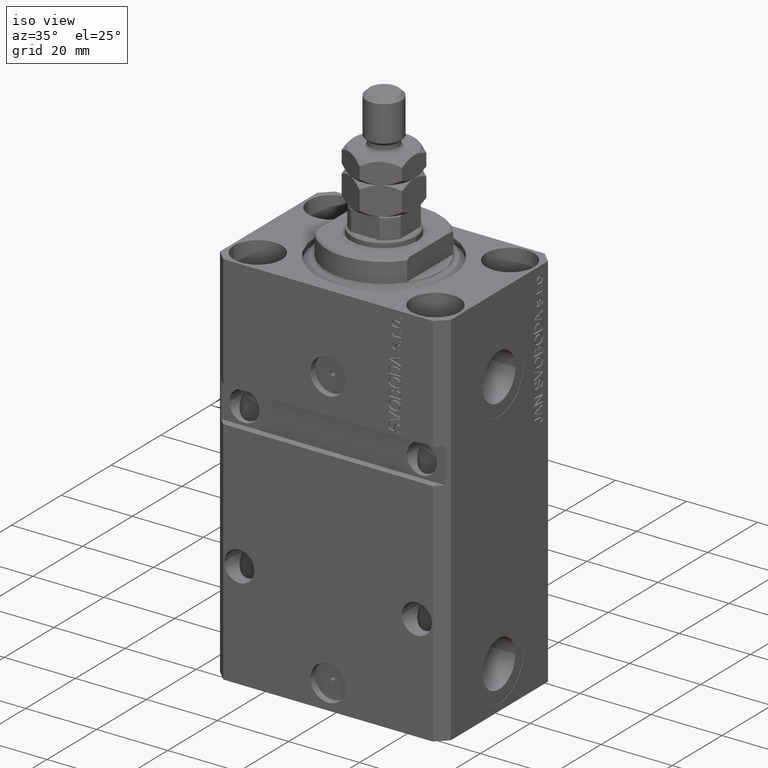
[diagram: clean part render]
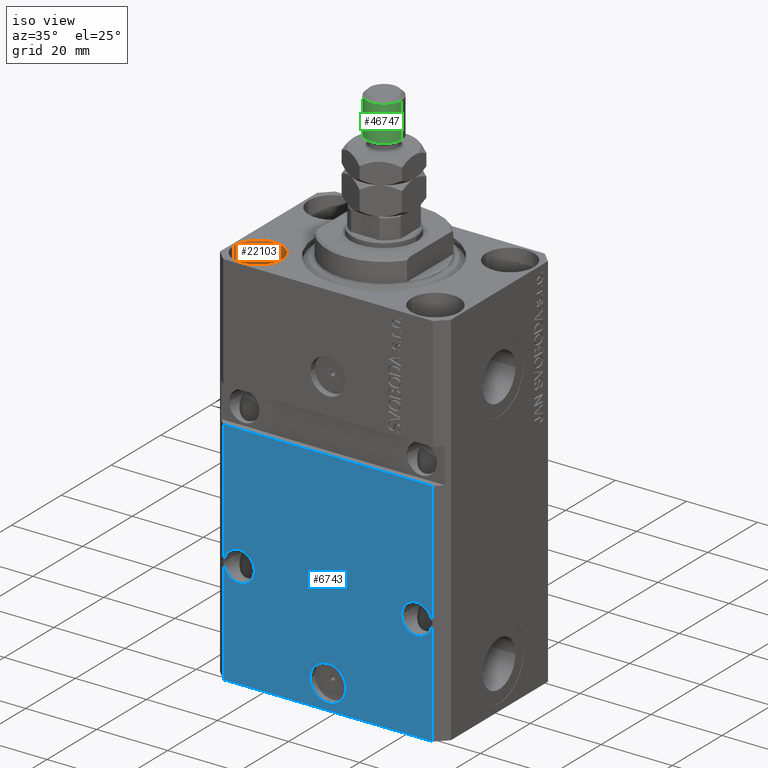
[diagram: same view with three faces highlighted in distinct colors, each labeled with its STEP entity id]
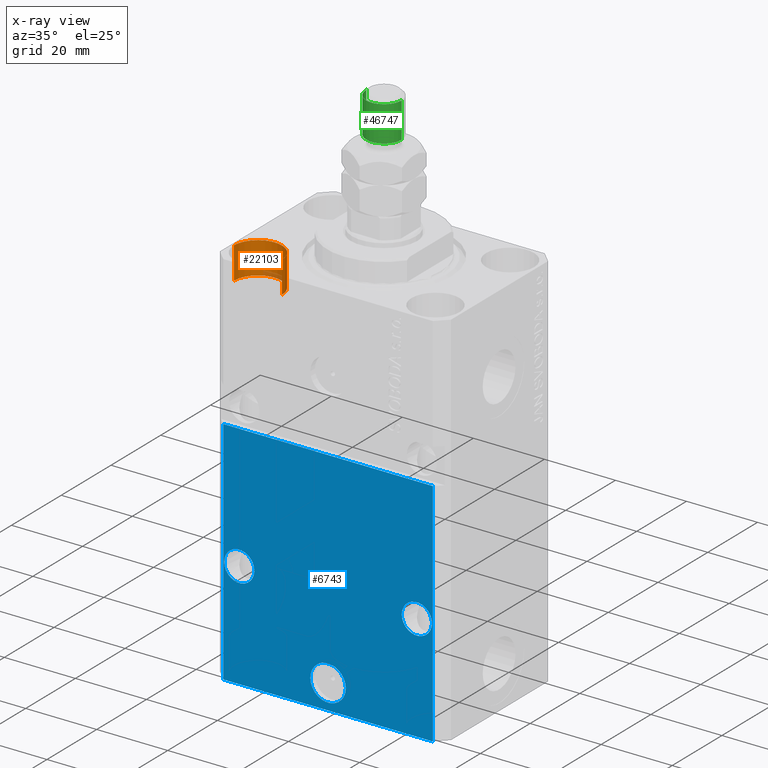
[diagram: x-ray of the same camera — body ghosted, the three highlighted faces saturated]
A machine part, iso view with three faces highlighted in distinct colors.
The next image is the same camera in x-ray (body ghosted, the three faces saturated) — at least one of them is partly hidden behind the body in this view.
Their STEP definitions:

[orange] entity #22103 — the highlighted cylindrical surface (edge-blend (fillet) strip) has radius 6.75 mm, axis along (0, 0, 1).
#2440 = CARTESIAN_POINT ( 'NONE',  ( -18.24999999995846167, -15.00000000000000000, 0.000000000000000000 ) ) ;
#6324 = EDGE_LOOP ( 'NONE', ( #9678, #22619, #23319, #15257 ) ) ;
#8302 = DIRECTION ( 'NONE',  ( 1.000000000000000000, 0.000000000000000000, 0.000000000000000000 ) ) ;
#9015 = CARTESIAN_POINT ( 'NONE',  ( -31.75000000004154899, -15.00000000000000000, -9.000000000000000000 ) ) ;
#9678 = ORIENTED_EDGE ( 'NONE', *, *, #28933, .F. ) ;
#10647 = CARTESIAN_POINT ( 'NONE',  ( -31.75000000004154899, -15.00000000000000000, 0.000000000000000000 ) ) ;
#11940 = FACE_OUTER_BOUND ( 'NONE', #6324, .T. ) ;
#13871 = AXIS2_PLACEMENT_3D ( 'NONE', #38756, #46128, #20679 ) ;
#14105 = LINE ( 'NONE', #14345, #25451 ) ;
#14345 = CARTESIAN_POINT ( 'NONE',  ( -31.75000000004154899, -15.00000000000000000, -9.000000000000000000 ) ) ;
#15048 = DIRECTION ( 'NONE',  ( 1.000000000000000000, 0.000000000000000000, 0.000000000000000000 ) ) ;
#15257 = ORIENTED_EDGE ( 'NONE', *, *, #22565, .T. ) ;
#18155 = DIRECTION ( 'NONE',  ( -0.000000000000000000, -0.000000000000000000, 1.000000000000000000 ) ) ;
#20679 = DIRECTION ( 'NONE',  ( 1.000000000000000000, 0.000000000000000000, 0.000000000000000000 ) ) ;
#21253 = VERTEX_POINT ( 'NONE', #9015 ) ;
#22103 = ADVANCED_FACE ( 'NONE', ( #11940 ), #22407, .F. ) ;
#22407 = CYLINDRICAL_SURFACE ( 'NONE', #39679, 6.750000000041541881 ) ;
#22565 = EDGE_CURVE ( 'NONE', #38188, #34806, #35894, .T. ) ;
#22619 = ORIENTED_EDGE ( 'NONE', *, *, #28071, .F. ) ;
#23319 = ORIENTED_EDGE ( 'NONE', *, *, #42268, .T. ) ;
#25451 = VECTOR ( 'NONE', #18155, 1000.000000000000000 ) ;
#25680 = CARTESIAN_POINT ( 'NONE',  ( -25.00000000000000355, -15.00000000000000000, -9.000000000000000000 ) ) ;
#26698 = CARTESIAN_POINT ( 'NONE',  ( -25.00000000000000355, -15.00000000000000000, -9.000000000000000000 ) ) ;
#28071 = EDGE_CURVE ( 'NONE', #36948, #21253, #45919, .T. ) ;
#28933 = EDGE_CURVE ( 'NONE', #21253, #34806, #14105, .T. ) ;
#29866 = DIRECTION ( 'NONE',  ( -0.000000000000000000, -0.000000000000000000, 1.000000000000000000 ) ) ;
#31496 = AXIS2_PLACEMENT_3D ( 'NONE', #25680, #40881, #8302 ) ;
#32517 = CARTESIAN_POINT ( 'NONE',  ( -18.24999999995846167, -15.00000000000000000, -9.000000000000000000 ) ) ;
#34065 = DIRECTION ( 'NONE',  ( -0.000000000000000000, -0.000000000000000000, 1.000000000000000000 ) ) ;
#34806 = VERTEX_POINT ( 'NONE', #10647 ) ;
#35894 = CIRCLE ( 'NONE', #13871, 6.750000000041541881 ) ;
#36948 = VERTEX_POINT ( 'NONE', #32517 ) ;
#38188 = VERTEX_POINT ( 'NONE', #2440 ) ;
#38529 = VECTOR ( 'NONE', #29866, 1000.000000000000000 ) ;
#38756 = CARTESIAN_POINT ( 'NONE',  ( -25.00000000000000355, -15.00000000000000000, 0.000000000000000000 ) ) ;
#39679 = AXIS2_PLACEMENT_3D ( 'NONE', #26698, #34065, #15048 ) ;
#40100 = CARTESIAN_POINT ( 'NONE',  ( -18.24999999995846167, -15.00000000000000000, -9.000000000000000000 ) ) ;
#40881 = DIRECTION ( 'NONE',  ( 0.000000000000000000, 0.000000000000000000, 1.000000000000000000 ) ) ;
#42268 = EDGE_CURVE ( 'NONE', #36948, #38188, #43905, .T. ) ;
#43905 = LINE ( 'NONE', #40100, #38529 ) ;
#45919 = CIRCLE ( 'NONE', #31496, 6.750000000041541881 ) ;
#46128 = DIRECTION ( 'NONE',  ( 0.000000000000000000, 0.000000000000000000, 1.000000000000000000 ) ) ;

[blue] entity #6743 — the highlighted planar face has unit normal (0, -1, 0).
#6 = DIRECTION ( 'NONE',  ( 1.000000000000000000, 1.176083712526788232E-16, 0.000000000000000000 ) ) ;
#72 = DIRECTION ( 'NONE',  ( 0.000000000000000000, 0.000000000000000000, 1.000000000000000000 ) ) ;
#178 = AXIS2_PLACEMENT_3D ( 'NONE', #19100, #12201, #16247 ) ;
#519 = CIRCLE ( 'NONE', #34739, 4.249999999976592058 ) ;
#940 = ORIENTED_EDGE ( 'NONE', *, *, #1911, .F. ) ;
#1911 = EDGE_CURVE ( 'NONE', #35632, #27849, #26534, .T. ) ;
#2856 = VERTEX_POINT ( 'NONE', #36016 ) ;
#2926 = EDGE_CURVE ( 'NONE', #36173, #27288, #7674, .T. ) ;
#3346 = FACE_BOUND ( 'NONE', #9187, .T. ) ;
#3395 = VERTEX_POINT ( 'NONE', #39920 ) ;
#3578 = FACE_BOUND ( 'NONE', #8331, .T. ) ;
#3807 = DIRECTION ( 'NONE',  ( 1.176083712526788232E-16, -1.000000000000000000, 0.000000000000000000 ) ) ;
#4535 = AXIS2_PLACEMENT_3D ( 'NONE', #35035, #35500, #17670 ) ;
#4551 = VECTOR ( 'NONE', #72, 1000.000000000000000 ) ;
#4605 = EDGE_CURVE ( 'NONE', #36173, #3395, #10396, .T. ) ;
#4702 = ORIENTED_EDGE ( 'NONE', *, *, #18719, .F. ) ;
#5260 = AXIS2_PLACEMENT_3D ( 'NONE', #35269, #44866, #38594 ) ;
#5780 = CARTESIAN_POINT ( 'NONE',  ( 29.49999999999650058, -22.49999999999949196, -41.99999999999998579 ) ) ;
#6743 = ADVANCED_FACE ( 'NONE', ( #22115, #3346, #3578, #18097 ), #14285, .T. ) ;
#7285 = DIRECTION ( 'NONE',  ( 1.000000000000000000, 1.176083712526788232E-16, 0.000000000000000000 ) ) ;
#7674 = LINE ( 'NONE', #25762, #4551 ) ;
#8331 = EDGE_LOOP ( 'NONE', ( #940, #37097 ) ) ;
#9187 = EDGE_LOOP ( 'NONE', ( #4702, #24479 ) ) ;
#9382 = DIRECTION ( 'NONE',  ( 1.000000000000000000, 0.000000000000000000, 0.000000000000000000 ) ) ;
#9640 = VERTEX_POINT ( 'NONE', #25306 ) ;
#10048 = CARTESIAN_POINT ( 'NONE',  ( -25.00000000000000000, -22.49999999999949907, -76.99999999999998579 ) ) ;
#10346 = DIRECTION ( 'NONE',  ( 1.000000000000000000, 1.067522139062765303E-16, 1.067522139062765303E-16 ) ) ;
#10396 = LINE ( 'NONE', #24893, #46366 ) ;
#11184 = EDGE_CURVE ( 'NONE', #25308, #2856, #31886, .T. ) ;
#12201 = DIRECTION ( 'NONE',  ( 1.176083712526788232E-16, -1.000000000000000000, 0.000000000000000000 ) ) ;
#13539 = CIRCLE ( 'NONE', #41610, 5.000000000000006217 ) ;
#13845 = CARTESIAN_POINT ( 'NONE',  ( 2.646188353185214061E-15, -22.49999999999949551, -99.99999999999998579 ) ) ;
#14285 = PLANE ( 'NONE',  #47075 ) ;
#14584 = EDGE_LOOP ( 'NONE', ( #34679, #33193, #17086, #31141 ) ) ;
#16097 = EDGE_CURVE ( 'NONE', #30934, #9640, #32799, .T. ) ;
#16247 = DIRECTION ( 'NONE',  ( 1.000000000000000000, 0.000000000000000000, 0.000000000000000000 ) ) ;
#17086 = ORIENTED_EDGE ( 'NONE', *, *, #4605, .T. ) ;
#17670 = DIRECTION ( 'NONE',  ( 1.000000000000000000, 0.000000000000000000, 0.000000000000000000 ) ) ;
#18097 = FACE_OUTER_BOUND ( 'NONE', #14584, .T. ) ;
#18719 = EDGE_CURVE ( 'NONE', #2856, #25308, #41944, .T. ) ;
#19100 = CARTESIAN_POINT ( 'NONE',  ( 25.00000000000000711, -22.49999999999949196, -76.99999999999998579 ) ) ;
#21912 = DIRECTION ( 'NONE',  ( 1.000000000000000000, 0.000000000000000000, 0.000000000000000000 ) ) ;
#22115 = FACE_BOUND ( 'NONE', #36225, .T. ) ;
#24479 = ORIENTED_EDGE ( 'NONE', *, *, #11184, .F. ) ;
#24893 = CARTESIAN_POINT ( 'NONE',  ( -29.49999999999650413, -22.49999999999949907, -107.0000000000000000 ) ) ;
#25114 = EDGE_CURVE ( 'NONE', #3395, #28788, #38139, .T. ) ;
#25306 = CARTESIAN_POINT ( 'NONE',  ( 5.000000000000008882, -22.49999999999949551, -99.99999999999998579 ) ) ;
#25308 = VERTEX_POINT ( 'NONE', #37384 ) ;
#25762 = CARTESIAN_POINT ( 'NONE',  ( -29.49999999999650413, -22.49999999999949907, -107.0000000000000000 ) ) ;
#26465 = CARTESIAN_POINT ( 'NONE',  ( -29.49999999999650413, -22.49999999999949907, -41.99999999999999289 ) ) ;
#26534 = CIRCLE ( 'NONE', #5260, 4.249999999976592058 ) ;
#27288 = VERTEX_POINT ( 'NONE', #26465 ) ;
#27849 = VERTEX_POINT ( 'NONE', #45049 ) ;
#27891 = DIRECTION ( 'NONE',  ( 1.176083712526788232E-16, -1.000000000000000000, 0.000000000000000000 ) ) ;
#28429 = LINE ( 'NONE', #35811, #31583 ) ;
#28788 = VERTEX_POINT ( 'NONE', #5780 ) ;
#30563 = CARTESIAN_POINT ( 'NONE',  ( 2.646188353185214061E-15, -22.49999999999949551, -99.99999999999998579 ) ) ;
#30934 = VERTEX_POINT ( 'NONE', #36944 ) ;
#31141 = ORIENTED_EDGE ( 'NONE', *, *, #25114, .T. ) ;
#31428 = VECTOR ( 'NONE', #42404, 1000.000000000000000 ) ;
#31583 = VECTOR ( 'NONE', #10346, 1000.000000000000000 ) ;
#31861 = CARTESIAN_POINT ( 'NONE',  ( -20.75000000002340883, -22.49999999999949907, -76.99999999999998579 ) ) ;
#31886 = CIRCLE ( 'NONE', #4535, 4.249999999989057642 ) ;
#32604 = CARTESIAN_POINT ( 'NONE',  ( -29.49999999999650413, -22.49999999999949907, -107.0000000000000000 ) ) ;
#32799 = CIRCLE ( 'NONE', #40387, 5.000000000000006217 ) ;
#33193 = ORIENTED_EDGE ( 'NONE', *, *, #2926, .F. ) ;
#33634 = EDGE_CURVE ( 'NONE', #9640, #30934, #13539, .T. ) ;
#34679 = ORIENTED_EDGE ( 'NONE', *, *, #35050, .F. ) ;
#34739 = AXIS2_PLACEMENT_3D ( 'NONE', #10048, #27891, #35506 ) ;
#35035 = CARTESIAN_POINT ( 'NONE',  ( 25.00000000000000711, -22.49999999999949196, -76.99999999999998579 ) ) ;
#35050 = EDGE_CURVE ( 'NONE', #27288, #28788, #28429, .T. ) ;
#35084 = CARTESIAN_POINT ( 'NONE',  ( -29.49999999999650413, -22.49999999999949907, -107.0000000000000000 ) ) ;
#35269 = CARTESIAN_POINT ( 'NONE',  ( -25.00000000000000000, -22.49999999999949907, -76.99999999999998579 ) ) ;
#35500 = DIRECTION ( 'NONE',  ( 1.176083712526788232E-16, -1.000000000000000000, 0.000000000000000000 ) ) ;
#35506 = DIRECTION ( 'NONE',  ( -1.000000000000000000, 0.000000000000000000, 0.000000000000000000 ) ) ;
#35632 = VERTEX_POINT ( 'NONE', #31861 ) ;
#35811 = CARTESIAN_POINT ( 'NONE',  ( -32.49999999999650413, -22.49999999999949907, -41.99999999999999289 ) ) ;
#35978 = DIRECTION ( 'NONE',  ( 1.176083712526788232E-16, -1.000000000000000000, 0.000000000000000000 ) ) ;
#36016 = CARTESIAN_POINT ( 'NONE',  ( 29.24999999998906475, -22.49999999999949196, -76.99999999999998579 ) ) ;
#36173 = VERTEX_POINT ( 'NONE', #35084 ) ;
#36225 = EDGE_LOOP ( 'NONE', ( #45758, #45509 ) ) ;
#36944 = CARTESIAN_POINT ( 'NONE',  ( -5.000000000000003553, -22.49999999999949551, -99.99999999999998579 ) ) ;
#37097 = ORIENTED_EDGE ( 'NONE', *, *, #38206, .F. ) ;
#37384 = CARTESIAN_POINT ( 'NONE',  ( 20.75000000001094946, -22.49999999999949196, -76.99999999999998579 ) ) ;
#38139 = LINE ( 'NONE', #38377, #31428 ) ;
#38206 = EDGE_CURVE ( 'NONE', #27849, #35632, #519, .T. ) ;
#38377 = CARTESIAN_POINT ( 'NONE',  ( 29.49999999999650413, -22.49999999999949196, -107.0000000000000000 ) ) ;
#38594 = DIRECTION ( 'NONE',  ( -1.000000000000000000, 0.000000000000000000, 0.000000000000000000 ) ) ;
#39920 = CARTESIAN_POINT ( 'NONE',  ( 29.49999999999650413, -22.49999999999949196, -107.0000000000000000 ) ) ;
#40387 = AXIS2_PLACEMENT_3D ( 'NONE', #30563, #45072, #9382 ) ;
#41610 = AXIS2_PLACEMENT_3D ( 'NONE', #13845, #35978, #21912 ) ;
#41944 = CIRCLE ( 'NONE', #178, 4.249999999989057642 ) ;
#42404 = DIRECTION ( 'NONE',  ( 0.000000000000000000, 0.000000000000000000, 1.000000000000000000 ) ) ;
#44866 = DIRECTION ( 'NONE',  ( 1.176083712526788232E-16, -1.000000000000000000, 0.000000000000000000 ) ) ;
#45049 = CARTESIAN_POINT ( 'NONE',  ( -29.24999999997659472, -22.49999999999949907, -76.99999999999998579 ) ) ;
#45072 = DIRECTION ( 'NONE',  ( 1.176083712526788232E-16, -1.000000000000000000, 0.000000000000000000 ) ) ;
#45509 = ORIENTED_EDGE ( 'NONE', *, *, #16097, .F. ) ;
#45758 = ORIENTED_EDGE ( 'NONE', *, *, #33634, .F. ) ;
#46366 = VECTOR ( 'NONE', #7285, 1000.000000000000000 ) ;
#47075 = AXIS2_PLACEMENT_3D ( 'NONE', #32604, #3807, #6 ) ;

[green] entity #46747 — the highlighted cylindrical surface (edge-blend (fillet) strip) has radius 5 mm, axis along (-0, -0, -1).
#653 = VECTOR ( 'NONE', #1346, 1000.000000000000000 ) ;
#1346 = DIRECTION ( 'NONE',  ( -0.000000000000000000, -0.000000000000000000, -1.000000000000000000 ) ) ;
#1827 = ORIENTED_EDGE ( 'NONE', *, *, #10666, .T. ) ;
#5248 = AXIS2_PLACEMENT_3D ( 'NONE', #40879, #29477, #10537 ) ;
#5405 = EDGE_CURVE ( 'NONE', #21337, #19257, #13285, .T. ) ;
#5546 = EDGE_CURVE ( 'NONE', #15908, #19257, #26485, .T. ) ;
#6688 = DIRECTION ( 'NONE',  ( 0.000000000000000000, 0.000000000000000000, -1.000000000000000000 ) ) ;
#7588 = ORIENTED_EDGE ( 'NONE', *, *, #5546, .T. ) ;
#7649 = DIRECTION ( 'NONE',  ( -1.000000000000000000, 0.000000000000000000, 0.000000000000000000 ) ) ;
#7886 = FACE_OUTER_BOUND ( 'NONE', #37726, .T. ) ;
#10537 = DIRECTION ( 'NONE',  ( 1.000000000000000000, 0.000000000000000000, 0.000000000000000000 ) ) ;
#10666 = EDGE_CURVE ( 'NONE', #21337, #35332, #43262, .T. ) ;
#11286 = VECTOR ( 'NONE', #23987, 1000.000000000000000 ) ;
#13285 = LINE ( 'NONE', #27343, #11286 ) ;
#13514 = CARTESIAN_POINT ( 'NONE',  ( 5.000000000000000000, 6.123233995736766282E-16, 26.99999999999998934 ) ) ;
#15908 = VERTEX_POINT ( 'NONE', #39631 ) ;
#17182 = CARTESIAN_POINT ( 'NONE',  ( 0.000000000000000000, 0.000000000000000000, 26.99999999999998934 ) ) ;
#19257 = VERTEX_POINT ( 'NONE', #39722 ) ;
#20136 = LINE ( 'NONE', #34187, #653 ) ;
#21337 = VERTEX_POINT ( 'NONE', #13514 ) ;
#22690 = AXIS2_PLACEMENT_3D ( 'NONE', #36678, #37141, #7649 ) ;
#23987 = DIRECTION ( 'NONE',  ( -0.000000000000000000, -0.000000000000000000, -1.000000000000000000 ) ) ;
#24761 = CARTESIAN_POINT ( 'NONE',  ( -5.000000000000000000, 0.000000000000000000, 26.99999999999998934 ) ) ;
#26485 = CIRCLE ( 'NONE', #5248, 5.000000000000000000 ) ;
#27343 = CARTESIAN_POINT ( 'NONE',  ( 5.000000000000000000, 6.123233995736766282E-16, 28.00000000000000000 ) ) ;
#29477 = DIRECTION ( 'NONE',  ( -0.000000000000000000, -0.000000000000000000, 1.000000000000000000 ) ) ;
#29766 = CYLINDRICAL_SURFACE ( 'NONE', #22690, 5.000000000000000000 ) ;
#34187 = CARTESIAN_POINT ( 'NONE',  ( -5.000000000000000000, 0.000000000000000000, 28.00000000000000000 ) ) ;
#35332 = VERTEX_POINT ( 'NONE', #24761 ) ;
#35629 = ORIENTED_EDGE ( 'NONE', *, *, #5405, .F. ) ;
#36678 = CARTESIAN_POINT ( 'NONE',  ( 0.000000000000000000, 0.000000000000000000, 28.00000000000000000 ) ) ;
#37141 = DIRECTION ( 'NONE',  ( -0.000000000000000000, -0.000000000000000000, -1.000000000000000000 ) ) ;
#37493 = ORIENTED_EDGE ( 'NONE', *, *, #45407, .T. ) ;
#37726 = EDGE_LOOP ( 'NONE', ( #35629, #1827, #37493, #7588 ) ) ;
#39631 = CARTESIAN_POINT ( 'NONE',  ( -5.000000000000000000, 0.000000000000000000, 17.00000000000000355 ) ) ;
#39722 = CARTESIAN_POINT ( 'NONE',  ( 5.000000000000000000, 6.123233995736766282E-16, 17.00000000000000355 ) ) ;
#40879 = CARTESIAN_POINT ( 'NONE',  ( 0.000000000000000000, 0.000000000000000000, 17.00000000000000355 ) ) ;
#43262 = CIRCLE ( 'NONE', #43995, 5.000000000000000000 ) ;
#43995 = AXIS2_PLACEMENT_3D ( 'NONE', #17182, #6688, #46429 ) ;
#45407 = EDGE_CURVE ( 'NONE', #35332, #15908, #20136, .T. ) ;
#46429 = DIRECTION ( 'NONE',  ( 1.000000000000000000, 0.000000000000000000, 0.000000000000000000 ) ) ;
#46747 = ADVANCED_FACE ( 'NONE', ( #7886 ), #29766, .T. ) ;